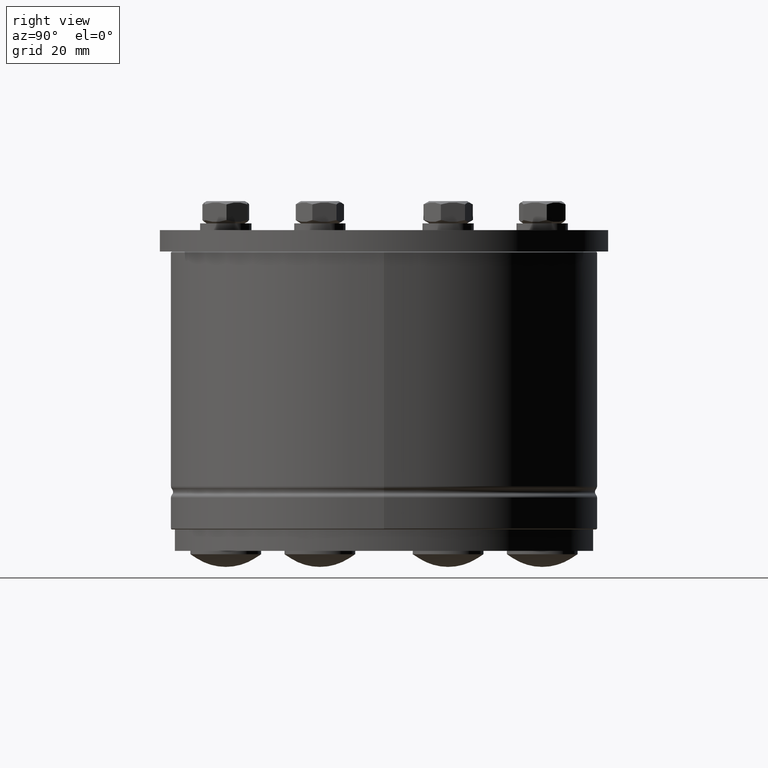
[diagram: clean part render]
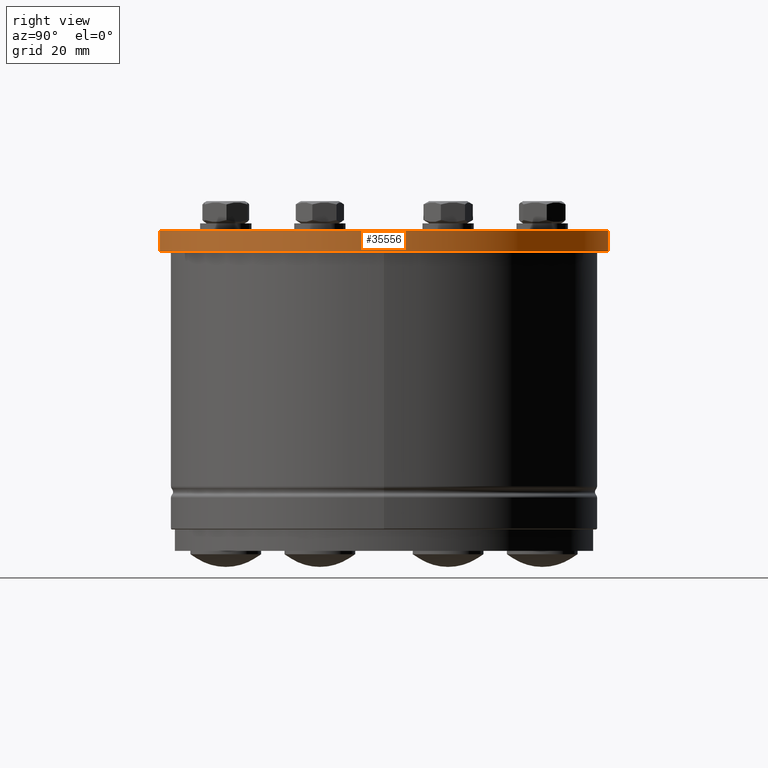
[diagram: same view with one face highlighted and labeled with its STEP entity id]
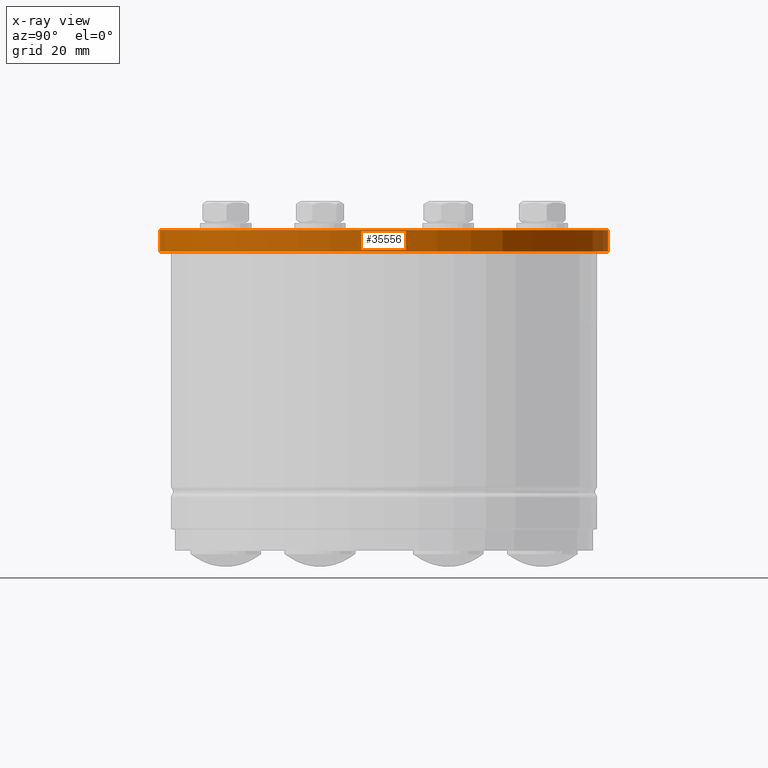
[diagram: x-ray of the same camera — body ghosted, the highlighted face saturated]
A machine part, right view. The second image highlights one B-rep face of the part: STEP entity #35556.
The next image is the same camera in x-ray: the body ghosted, the highlighted face saturated — about 0% of this face is hidden behind the body in this view.
In plain terms, the highlighted cylindrical surface (partial cylindrical patch) has radius 52.5 mm, axis along (0, 0, -1).
Its self-contained STEP definition (entity closure, byte-faithful):
#35427=CARTESIAN_POINT('',(-52.407280147416166,-3.118811881188105,5.0));
#35428=VERTEX_POINT('',#35427);
#35436=CARTESIAN_POINT('',(52.407280147416166,-3.118811881188115,5.0));
#35437=VERTEX_POINT('',#35436);
#35438=CARTESIAN_POINT('',(0.0,0.0,5.0));
#35439=DIRECTION('',(0.0,0.0,-1.0));
#35440=DIRECTION('',(0.999818577647273,0.019047619047619,0.0));
#35441=AXIS2_PLACEMENT_3D('',#35438,#35439,#35440);
#35442=CIRCLE('',#35441,52.499999999999993);
#35443=EDGE_CURVE('',#35437,#35428,#35442,.T.);
#35514=CARTESIAN_POINT('',(-52.407280147416166,-3.118811881188105,0.0));
#35515=VERTEX_POINT('',#35514);
#35523=CARTESIAN_POINT('',(-52.407280147416159,-3.118811881188104,0.0));
#35524=DIRECTION('',(0.0,0.0,1.0));
#35525=VECTOR('',#35524,5.0);
#35526=LINE('',#35523,#35525);
#35527=EDGE_CURVE('',#35515,#35428,#35526,.T.);
#35532=CARTESIAN_POINT('',(0.0,0.0,0.0));
#35533=DIRECTION('',(0.0,0.0,1.0));
#35534=DIRECTION('',(0.999818577647273,0.019047619047619,0.0));
#35535=AXIS2_PLACEMENT_3D('',#35532,#35533,#35534);
#35536=CYLINDRICAL_SURFACE('',#35535,52.5);
#35537=ORIENTED_EDGE('',*,*,#35527,.F.);
#35538=CARTESIAN_POINT('',(52.407280147416166,-3.118811881188115,0.0));
#35539=VERTEX_POINT('',#35538);
#35540=CARTESIAN_POINT('',(0.0,0.0,0.0));
#35541=DIRECTION('',(0.0,0.0,-1.0));
#35542=DIRECTION('',(0.999818577647273,0.019047619047619,0.0));
#35543=AXIS2_PLACEMENT_3D('',#35540,#35541,#35542);
#35544=CIRCLE('',#35543,52.499999999999993);
#35545=EDGE_CURVE('',#35539,#35515,#35544,.T.);
#35546=ORIENTED_EDGE('',*,*,#35545,.F.);
#35547=CARTESIAN_POINT('',(52.407280147416166,-3.118811881188115,5.0));
#35548=DIRECTION('',(0.0,0.0,-1.0));
#35549=VECTOR('',#35548,5.0);
#35550=LINE('',#35547,#35549);
#35551=EDGE_CURVE('',#35437,#35539,#35550,.T.);
#35552=ORIENTED_EDGE('',*,*,#35551,.F.);
#35553=ORIENTED_EDGE('',*,*,#35443,.T.);
#35554=EDGE_LOOP('',(#35537,#35546,#35552,#35553));
#35555=FACE_OUTER_BOUND('',#35554,.T.);
#35556=ADVANCED_FACE('',(#35555),#35536,.T.);